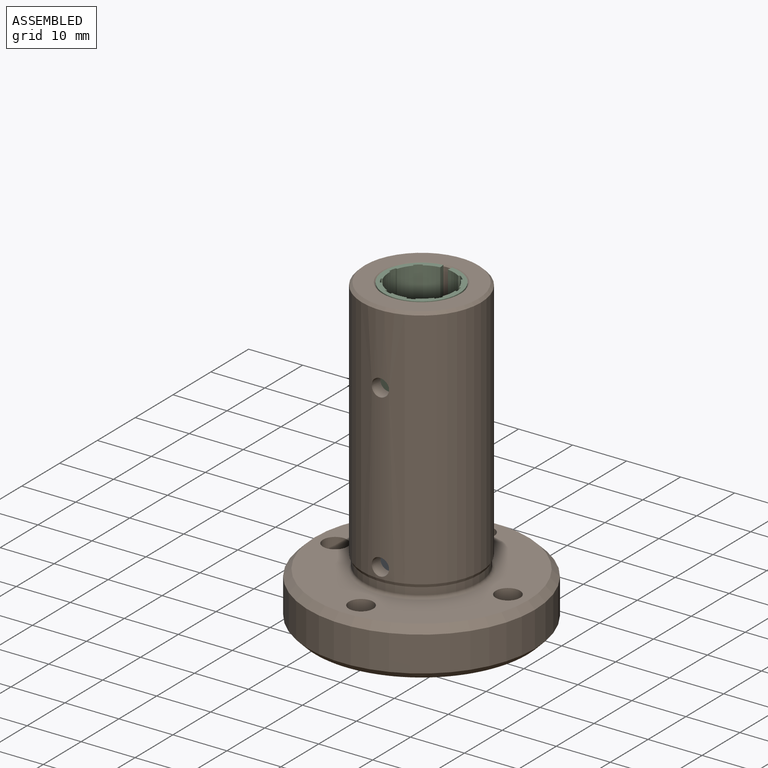
[diagram: assembled view]
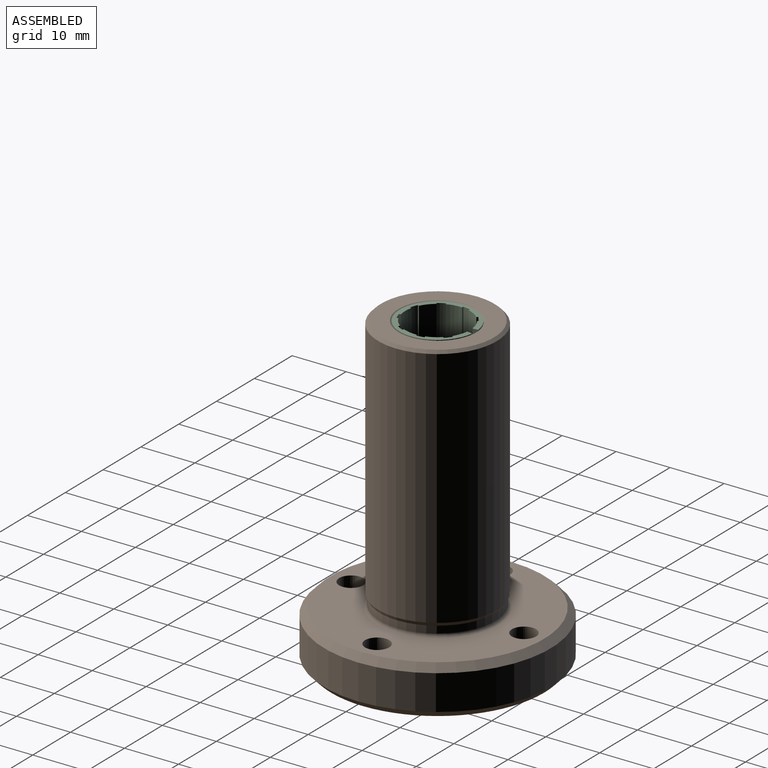
[diagram: assembled view, second angle]
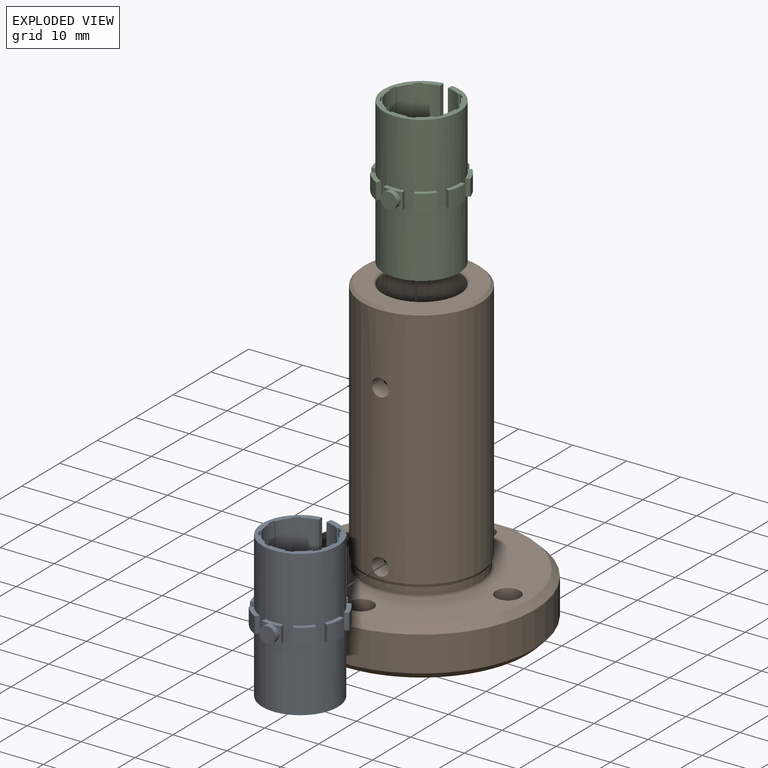
[diagram: exploded view]
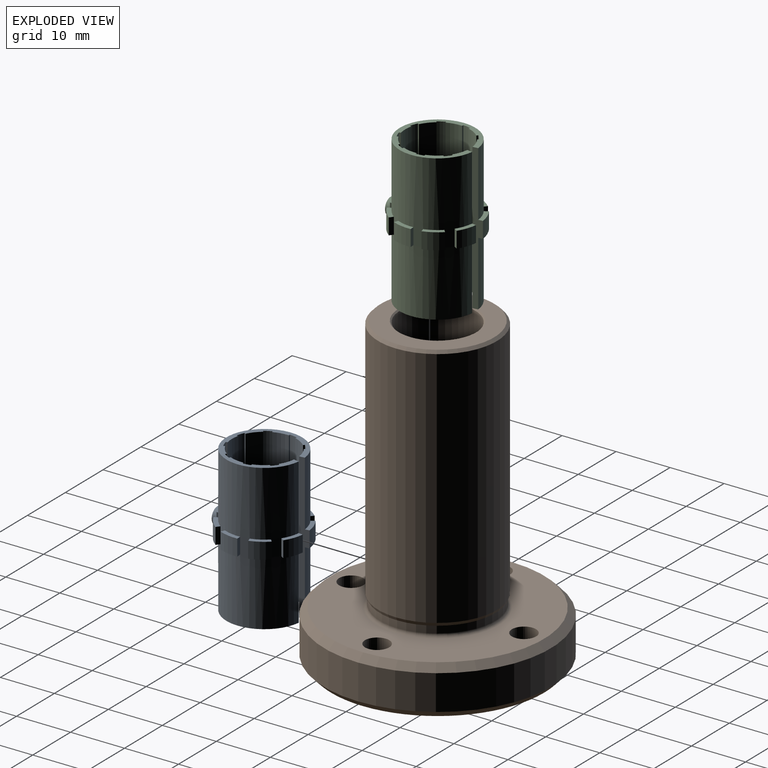
[diagram: exploded view, second angle]
ASSEMBLY  parts=3 mates=4
PART A: 84 faces, bbox 15.6x16.4x27 mm
  f0: cylinder r=7mm len=27mm, axis (0,0,1), area 1055.6mm2, adj f4,f8,f9,f10,f11,f12,f14,f15
  f1: cylinder r=6mm len=27mm, axis (0,0,1), area 75.4mm2, adj f4,f59,f66,f71
  f2: cylinder r=6mm len=27mm, axis (0,0,1), area 75.4mm2, adj f4,f66,f67,f79
  f3: cylinder r=1.5mm len=3mm, axis (0,1,0), area 9.2mm2, adj f5,f6,f7
  f4: plane 14x13.95mm, normal (0,0,-1), area 35.9mm2, adj f0,f1,f2,f29,f32,f52,f53,f54
  f5: plane 3x3mm, normal (0,-1,0), area 7.1mm2, adj f3
  f6: cylinder r=7.8mm len=3mm, axis (0,0,1), area 3.2mm2, adj f3,f8,f10,f11
  f7: cylinder r=7.8mm len=3mm, axis (0,0,1), area 3.2mm2, adj f3,f9,f10,f11
  f8: plane 3x0.78mm, normal (0.97,0.23,0), area 2.4mm2, adj f0,f6,f10,f11
  f9: plane 3x0.78mm, normal (-0.97,0.23,0), area 2.4mm2, adj f0,f7,f10,f11
  f10: plane 3.6x0.99mm, normal (0,0,-1), area 2.8mm2, adj f0,f6,f7,f8,f9
  f11: plane 3.6x0.99mm, normal (0,0,1), area 2.8mm2, adj f0,f6,f7,f8,f9
  f12: plane 3x0.72mm, normal (0.89,-0.45,0), area 2.4mm2, adj f0,f13,f15,f16
  f13: cylinder r=7.8mm len=3mm, axis (0,0,1), area 10.9mm2, adj f12,f14,f15,f16
  f14: plane 3x0.64mm, normal (-0.6,0.8,0), area 2.4mm2, adj f0,f13,f15,f16
  f15: plane 3.12x2.79mm, normal (0,0,-1), area 2.8mm2, adj f0,f12,f13,f14
  f16: plane 3.12x2.79mm, normal (0,0,1), area 2.8mm2, adj f0,f12,f13,f14
  f17: plane 3x0.73mm, normal (0.4,-0.92,0), area 2.4mm2, adj f0,f18,f20,f21
  f18: cylinder r=7.8mm len=3.54mm, axis (0,0,1), area 10.9mm2, adj f17,f19,f20,f21
  f19: plane 3x0.8mm, normal (0.06,1,0), area 2.4mm2, adj f0,f18,f20,f21
  f20: plane 3.54x1.37mm, normal (0,0,-1), area 2.8mm2, adj f0,f17,f18,f19
  f21: plane 3.54x1.37mm, normal (0,0,1), area 2.8mm2, adj f0,f17,f18,f19
  f22: plane 3x0.77mm, normal (-0.29,-0.96,0), area 2.4mm2, adj f0,f23,f25,f26
  f23: cylinder r=7.8mm len=3.12mm, axis (0,0,1), area 10.9mm2, adj f22,f24,f25,f26
  f24: plane 3x0.58mm, normal (0.69,0.73,0), area 2.4mm2, adj f0,f23,f25,f26
  f25: plane 3.35x2.38mm, normal (0,0,-1), area 2.8mm2, adj f0,f22,f23,f24
  f26: plane 3.35x2.38mm, normal (0,0,1), area 2.8mm2, adj f0,f22,f23,f24
  f27: plane 3x0.67mm, normal (-0.84,-0.55,0), area 2.4mm2, adj f0,f28,f30,f31
  f28: cylinder r=7.8mm len=3.38mm, axis (0,0,1), area 10.9mm2, adj f27,f29,f30,f31
  f29: plane 27x1.79mm, normal (0.99,0.12,0), area 29.4mm2, adj f0,f4,f28,f30,f31,f57,f66
  f30: plane 3.47x1.9mm, normal (0,0,-1), area 2.8mm2, adj f0,f27,f28,f29
  f31: plane 3.47x1.9mm, normal (0,0,1), area 2.8mm2, adj f0,f27,f28,f29
  f32: plane 27x1.79mm, normal (-0.99,0.12,0), area 29.4mm2, adj f0,f4,f33,f35,f36,f55,f66
  f33: cylinder r=7.8mm len=3.38mm, axis (0,0,1), area 10.9mm2, adj f32,f34,f35,f36
  f34: plane 3x0.67mm, normal (0.84,-0.55,0), area 2.4mm2, adj f0,f33,f35,f36
  f35: plane 3.47x1.9mm, normal (0,0,-1), area 2.8mm2, adj f0,f32,f33,f34
  f36: plane 3.47x1.9mm, normal (0,0,1), area 2.8mm2, adj f0,f32,f33,f34
  f37: plane 3x0.58mm, normal (-0.69,0.73,0), area 2.4mm2, adj f0,f38,f40,f41
  f38: cylinder r=7.8mm len=3.12mm, axis (0,0,1), area 10.9mm2, adj f37,f39,f40,f41
  f39: plane 3x0.77mm, normal (0.29,-0.96,0), area 2.4mm2, adj f0,f38,f40,f41
  f40: plane 3.35x2.38mm, normal (0,0,-1), area 2.8mm2, adj f0,f37,f38,f39
  f41: plane 3.35x2.38mm, normal (0,0,1), area 2.8mm2, adj f0,f37,f38,f39
  f42: plane 3x0.8mm, normal (-0.06,1,0), area 2.4mm2, adj f0,f43,f45,f46
  f43: cylinder r=7.8mm len=3.54mm, axis (0,0,1), area 10.9mm2, adj f42,f44,f45,f46
  f44: plane 3x0.73mm, normal (-0.4,-0.92,0), area 2.4mm2, adj f0,f43,f45,f46
  f45: plane 3.54x1.37mm, normal (0,0,-1), area 2.8mm2, adj f0,f42,f43,f44
  f46: plane 3.54x1.37mm, normal (0,0,1), area 2.8mm2, adj f0,f42,f43,f44
  f47: plane 3x0.64mm, normal (0.6,0.8,0), area 2.4mm2, adj f0,f48,f50,f51
  f48: cylinder r=7.8mm len=3mm, axis (0,0,1), area 10.9mm2, adj f47,f49,f50,f51
  f49: plane 3x0.72mm, normal (-0.89,-0.45,0), area 2.4mm2, adj f0,f48,f50,f51
  f50: plane 3.12x2.79mm, normal (0,0,-1), area 2.8mm2, adj f0,f47,f48,f49
  f51: plane 3.12x2.79mm, normal (0,0,1), area 2.8mm2, adj f0,f47,f48,f49
  f52: cylinder r=6mm len=27mm, axis (0,0,1), area 75.4mm2, adj f4,f64,f66,f81
  f53: cylinder r=6mm len=27mm, axis (0,0,1), area 75.4mm2, adj f4,f65,f66,f77
  f54: cylinder r=6mm len=27mm, axis (0,0,1), area 75.4mm2, adj f4,f62,f66,f83
  f55: cylinder r=6mm len=27mm, axis (0,0,1), area 75.4mm2, adj f4,f32,f63,f66
  f56: cylinder r=6mm len=27mm, axis (0,0,1), area 75.4mm2, adj f4,f61,f66,f69
  f57: cylinder r=6mm len=27mm, axis (0,0,1), area 75.4mm2, adj f4,f29,f66,f75
  f58: cylinder r=6mm len=27mm, axis (0,0,1), area 75.4mm2, adj f4,f60,f66,f73
  f59: plane 27x0.3mm, normal (0.06,1,0), area 8.1mm2, adj f1,f4,f66,f72
  f60: plane 27x0.22mm, normal (0.69,0.73,0), area 8.1mm2, adj f4,f58,f66,f74
  f61: plane 27x0.24mm, normal (-0.6,0.8,0), area 8.1mm2, adj f4,f56,f66,f70
  f62: plane 27x0.29mm, normal (-0.97,0.23,0), area 8.1mm2, adj f4,f54,f66,f68
  f63: plane 27x0.25mm, normal (0.84,-0.55,0), area 8.1mm2, adj f4,f55,f66,f76
  f64: plane 27x0.27mm, normal (-0.89,-0.45,0), area 8.1mm2, adj f4,f52,f66,f82
  f65: plane 27x0.29mm, normal (0.29,-0.96,0), area 8.1mm2, adj f4,f53,f66,f78
  f66: plane 14x13.95mm, normal (0,0,1), area 35.9mm2, adj f0,f1,f2,f29,f32,f52,f53,f54
  f67: plane 27x0.28mm, normal (-0.4,-0.92,0), area 8.1mm2, adj f2,f4,f66,f80
  f68: cylinder r=6.3mm len=27mm, axis (0,0,1), area 39.6mm2, adj f4,f62,f66,f69
  f69: plane 27x0.27mm, normal (0.89,-0.45,0), area 8.1mm2, adj f4,f56,f66,f68
  f70: cylinder r=6.3mm len=27mm, axis (0,0,1), area 39.6mm2, adj f4,f61,f66,f71
  f71: plane 27x0.28mm, normal (0.4,-0.92,0), area 8.1mm2, adj f1,f4,f66,f70
  f72: cylinder r=6.3mm len=27mm, axis (0,0,1), area 39.6mm2, adj f4,f59,f66,f73
  f73: plane 27x0.29mm, normal (-0.29,-0.96,0), area 8.1mm2, adj f4,f58,f66,f72
  f74: cylinder r=6.3mm len=27mm, axis (0,0,1), area 39.6mm2, adj f4,f60,f66,f75
  f75: plane 27x0.25mm, normal (-0.84,-0.55,0), area 8.1mm2, adj f4,f57,f66,f74
  f76: cylinder r=6.3mm len=27mm, axis (0,0,1), area 39.6mm2, adj f4,f63,f66,f77
  f77: plane 27x0.22mm, normal (-0.69,0.73,0), area 8.1mm2, adj f4,f53,f66,f76
  f78: cylinder r=6.3mm len=27mm, axis (0,0,1), area 39.6mm2, adj f4,f65,f66,f79
  f79: plane 27x0.3mm, normal (-0.06,1,0), area 8.1mm2, adj f2,f4,f66,f78
  f80: cylinder r=6.3mm len=27mm, axis (0,0,1), area 39.6mm2, adj f4,f66,f67,f81
  f81: plane 27x0.24mm, normal (0.6,0.8,0), area 8.1mm2, adj f4,f52,f66,f80
  f82: cylinder r=6.3mm len=27mm, axis (0,0,1), area 39.6mm2, adj f4,f64,f66,f83
  f83: plane 27x0.29mm, normal (0.97,0.23,0), area 8.1mm2, adj f4,f54,f66,f82
PART B: 36 faces, bbox 42x42x57 mm
  f0: cylinder r=21mm len=42mm, axis (0,0,1), area 857.7mm2, adj f1,f2
  f1: cone r=10.5mm half-angle=45deg, axis (0,0,-1), area 226.3mm2, adj f0,f35
  f2: cone r=10.5mm half-angle=45deg, axis (0,0,1), area 226.3mm2, adj f0,f31
  f3: cylinder r=2.25mm len=4.9mm, axis (0,0,1), area 69.3mm2, adj f34,f35
  f4: cylinder r=2.25mm len=4.9mm, axis (0,0,1), area 69.3mm2, adj f33,f35
  f5: cylinder r=2.25mm len=4.9mm, axis (0,0,1), area 69.3mm2, adj f32,f35
  f6: cylinder r=2.25mm len=4.9mm, axis (0,0,1), area 69.3mm2, adj f30,f35
  f7: cylinder r=3.75mm len=7.5mm, axis (0,0,1), area 96.6mm2, adj f31,f34
  f8: cylinder r=3.75mm len=7.5mm, axis (0,0,1), area 96.6mm2, adj f31,f33
  f9: cylinder r=3.75mm len=7.5mm, axis (0,0,1), area 96.6mm2, adj f31,f32
  f10: cylinder r=3.75mm len=7.5mm, axis (0,0,1), area 96.6mm2, adj f30,f31
  f11: cylinder r=11mm len=45mm, axis (0,0,1), area 3094mm2, adj f13,f15,f21,f24
  f12: torus R=11.3mm, axis (0,0,-1), area 64.7mm2, adj f14,f35
  f13: cone r=11mm half-angle=26.6deg, axis (0,0,1), area 45.7mm2, adj f11,f14
  f14: cylinder r=10.7mm len=21.4mm, axis (0,0,-1), area 87.4mm2, adj f12,f13
  f15: cone r=5.5mm half-angle=45deg, axis (0,0,-1), area 47.8mm2, adj f11,f29
  f16: cone r=3.62mm half-angle=45deg, axis (0,0,1), area 15.8mm2, adj f18,f29
  f17: cone r=3.62mm half-angle=45deg, axis (0,0,-1), area 15.8mm2, adj f20,f31
  f18: cylinder r=7mm len=14mm, axis (0,0,1), area 516.8mm2, adj f16,f24,f27
  f19: cylinder r=8mm len=16mm, axis (0,0,1), area 144.3mm2, adj f21,f26,f28
  f20: cylinder r=7mm len=14mm, axis (0,0,1), area 516.8mm2, adj f17,f21,f26
  f21: cylinder r=1.6mm len=3.91mm, axis (0,-1,0), area 32mm2, adj f11,f19,f20,f23,f26,f28
  f22: cylinder r=8mm len=16mm, axis (0,0,1), area 144.3mm2, adj f24,f25,f27
  f23: cylinder r=7mm len=27mm, axis (0,0,1), area 1187.5mm2, adj f21,f24,f25,f28
  f24: cylinder r=1.6mm len=3.91mm, axis (0,-1,0), area 32mm2, adj f11,f18,f22,f23,f25,f27
  f25: plane 16x15.98mm, normal (0,0,1), area 46mm2, adj f22,f23,f24
  f26: plane 16x15.98mm, normal (0,0,1), area 46mm2, adj f19,f20,f21
  f27: plane 16x15.98mm, normal (0,0,-1), area 46mm2, adj f18,f22,f24
  f28: plane 16x15.98mm, normal (0,0,-1), area 46mm2, adj f19,f21,f23
  f29: plane 21x21mm, normal (0,0,1), area 181.2mm2, adj f15,f16
  f30: plane 7.5x7.5mm, normal (0,0,-1), area 28.3mm2, adj f6,f10
  f31: plane 39.5x39.5mm, normal (0,0,-1), area 883.6mm2, adj f2,f7,f8,f9,f10,f17
  f32: plane 7.5x7.5mm, normal (0,0,-1), area 28.3mm2, adj f5,f9
  f33: plane 7.5x7.5mm, normal (0,0,-1), area 28.3mm2, adj f4,f8
  f34: plane 7.5x7.5mm, normal (0,0,-1), area 28.3mm2, adj f3,f7
  f35: plane 39.5x39.5mm, normal (0,0,1), area 760.7mm2, adj f1,f3,f4,f5,f6,f12
PART C: 84 faces, bbox 15.6x16.4x27 mm
  f0: cylinder r=7mm len=27mm, axis (0,0,1), area 1055.6mm2, adj f4,f8,f9,f10,f11,f12,f14,f15
  f1: cylinder r=6mm len=27mm, axis (0,0,1), area 75.4mm2, adj f4,f59,f66,f71
  f2: cylinder r=6mm len=27mm, axis (0,0,1), area 75.4mm2, adj f4,f66,f67,f79
  f3: cylinder r=1.5mm len=3mm, axis (0,1,0), area 9.2mm2, adj f5,f6,f7
  f4: plane 14x13.95mm, normal (0,0,-1), area 35.9mm2, adj f0,f1,f2,f29,f32,f52,f53,f54
  f5: plane 3x3mm, normal (0,-1,0), area 7.1mm2, adj f3
  f6: cylinder r=7.8mm len=3mm, axis (0,0,1), area 3.2mm2, adj f3,f8,f10,f11
  f7: cylinder r=7.8mm len=3mm, axis (0,0,1), area 3.2mm2, adj f3,f9,f10,f11
  f8: plane 3x0.78mm, normal (0.97,0.23,0), area 2.4mm2, adj f0,f6,f10,f11
  f9: plane 3x0.78mm, normal (-0.97,0.23,0), area 2.4mm2, adj f0,f7,f10,f11
  f10: plane 3.6x0.99mm, normal (0,0,-1), area 2.8mm2, adj f0,f6,f7,f8,f9
  f11: plane 3.6x0.99mm, normal (0,0,1), area 2.8mm2, adj f0,f6,f7,f8,f9
  f12: plane 3x0.72mm, normal (0.89,-0.45,0), area 2.4mm2, adj f0,f13,f15,f16
  f13: cylinder r=7.8mm len=3mm, axis (0,0,1), area 10.9mm2, adj f12,f14,f15,f16
  f14: plane 3x0.64mm, normal (-0.6,0.8,0), area 2.4mm2, adj f0,f13,f15,f16
  f15: plane 3.12x2.79mm, normal (0,0,-1), area 2.8mm2, adj f0,f12,f13,f14
  f16: plane 3.12x2.79mm, normal (0,0,1), area 2.8mm2, adj f0,f12,f13,f14
  f17: plane 3x0.73mm, normal (0.4,-0.92,0), area 2.4mm2, adj f0,f18,f20,f21
  f18: cylinder r=7.8mm len=3.54mm, axis (0,0,1), area 10.9mm2, adj f17,f19,f20,f21
  f19: plane 3x0.8mm, normal (0.06,1,0), area 2.4mm2, adj f0,f18,f20,f21
  f20: plane 3.54x1.37mm, normal (0,0,-1), area 2.8mm2, adj f0,f17,f18,f19
  f21: plane 3.54x1.37mm, normal (0,0,1), area 2.8mm2, adj f0,f17,f18,f19
  f22: plane 3x0.77mm, normal (-0.29,-0.96,0), area 2.4mm2, adj f0,f23,f25,f26
  f23: cylinder r=7.8mm len=3.12mm, axis (0,0,1), area 10.9mm2, adj f22,f24,f25,f26
  f24: plane 3x0.58mm, normal (0.69,0.73,0), area 2.4mm2, adj f0,f23,f25,f26
  f25: plane 3.35x2.38mm, normal (0,0,-1), area 2.8mm2, adj f0,f22,f23,f24
  f26: plane 3.35x2.38mm, normal (0,0,1), area 2.8mm2, adj f0,f22,f23,f24
  f27: plane 3x0.67mm, normal (-0.84,-0.55,0), area 2.4mm2, adj f0,f28,f30,f31
  f28: cylinder r=7.8mm len=3.38mm, axis (0,0,1), area 10.9mm2, adj f27,f29,f30,f31
  f29: plane 27x1.79mm, normal (0.99,0.12,0), area 29.4mm2, adj f0,f4,f28,f30,f31,f57,f66
  f30: plane 3.47x1.9mm, normal (0,0,-1), area 2.8mm2, adj f0,f27,f28,f29
  f31: plane 3.47x1.9mm, normal (0,0,1), area 2.8mm2, adj f0,f27,f28,f29
  f32: plane 27x1.79mm, normal (-0.99,0.12,0), area 29.4mm2, adj f0,f4,f33,f35,f36,f55,f66
  f33: cylinder r=7.8mm len=3.38mm, axis (0,0,1), area 10.9mm2, adj f32,f34,f35,f36
  f34: plane 3x0.67mm, normal (0.84,-0.55,0), area 2.4mm2, adj f0,f33,f35,f36
  f35: plane 3.47x1.9mm, normal (0,0,-1), area 2.8mm2, adj f0,f32,f33,f34
  f36: plane 3.47x1.9mm, normal (0,0,1), area 2.8mm2, adj f0,f32,f33,f34
  f37: plane 3x0.58mm, normal (-0.69,0.73,0), area 2.4mm2, adj f0,f38,f40,f41
  f38: cylinder r=7.8mm len=3.12mm, axis (0,0,1), area 10.9mm2, adj f37,f39,f40,f41
  f39: plane 3x0.77mm, normal (0.29,-0.96,0), area 2.4mm2, adj f0,f38,f40,f41
  f40: plane 3.35x2.38mm, normal (0,0,-1), area 2.8mm2, adj f0,f37,f38,f39
  f41: plane 3.35x2.38mm, normal (0,0,1), area 2.8mm2, adj f0,f37,f38,f39
  f42: plane 3x0.8mm, normal (-0.06,1,0), area 2.4mm2, adj f0,f43,f45,f46
  f43: cylinder r=7.8mm len=3.54mm, axis (0,0,1), area 10.9mm2, adj f42,f44,f45,f46
  f44: plane 3x0.73mm, normal (-0.4,-0.92,0), area 2.4mm2, adj f0,f43,f45,f46
  f45: plane 3.54x1.37mm, normal (0,0,-1), area 2.8mm2, adj f0,f42,f43,f44
  f46: plane 3.54x1.37mm, normal (0,0,1), area 2.8mm2, adj f0,f42,f43,f44
  f47: plane 3x0.64mm, normal (0.6,0.8,0), area 2.4mm2, adj f0,f48,f50,f51
  f48: cylinder r=7.8mm len=3mm, axis (0,0,1), area 10.9mm2, adj f47,f49,f50,f51
  f49: plane 3x0.72mm, normal (-0.89,-0.45,0), area 2.4mm2, adj f0,f48,f50,f51
  f50: plane 3.12x2.79mm, normal (0,0,-1), area 2.8mm2, adj f0,f47,f48,f49
  f51: plane 3.12x2.79mm, normal (0,0,1), area 2.8mm2, adj f0,f47,f48,f49
  f52: cylinder r=6mm len=27mm, axis (0,0,1), area 75.4mm2, adj f4,f64,f66,f81
  f53: cylinder r=6mm len=27mm, axis (0,0,1), area 75.4mm2, adj f4,f65,f66,f77
  f54: cylinder r=6mm len=27mm, axis (0,0,1), area 75.4mm2, adj f4,f62,f66,f83
  f55: cylinder r=6mm len=27mm, axis (0,0,1), area 75.4mm2, adj f4,f32,f63,f66
  f56: cylinder r=6mm len=27mm, axis (0,0,1), area 75.4mm2, adj f4,f61,f66,f69
  f57: cylinder r=6mm len=27mm, axis (0,0,1), area 75.4mm2, adj f4,f29,f66,f75
  f58: cylinder r=6mm len=27mm, axis (0,0,1), area 75.4mm2, adj f4,f60,f66,f73
  f59: plane 27x0.3mm, normal (0.06,1,0), area 8.1mm2, adj f1,f4,f66,f72
  f60: plane 27x0.22mm, normal (0.69,0.73,0), area 8.1mm2, adj f4,f58,f66,f74
  f61: plane 27x0.24mm, normal (-0.6,0.8,0), area 8.1mm2, adj f4,f56,f66,f70
  f62: plane 27x0.29mm, normal (-0.97,0.23,0), area 8.1mm2, adj f4,f54,f66,f68
  f63: plane 27x0.25mm, normal (0.84,-0.55,0), area 8.1mm2, adj f4,f55,f66,f76
  f64: plane 27x0.27mm, normal (-0.89,-0.45,0), area 8.1mm2, adj f4,f52,f66,f82
  f65: plane 27x0.29mm, normal (0.29,-0.96,0), area 8.1mm2, adj f4,f53,f66,f78
  f66: plane 14x13.95mm, normal (0,0,1), area 35.9mm2, adj f0,f1,f2,f29,f32,f52,f53,f54
  f67: plane 27x0.28mm, normal (-0.4,-0.92,0), area 8.1mm2, adj f2,f4,f66,f80
  f68: cylinder r=6.3mm len=27mm, axis (0,0,1), area 39.6mm2, adj f4,f62,f66,f69
  f69: plane 27x0.27mm, normal (0.89,-0.45,0), area 8.1mm2, adj f4,f56,f66,f68
  f70: cylinder r=6.3mm len=27mm, axis (0,0,1), area 39.6mm2, adj f4,f61,f66,f71
  f71: plane 27x0.28mm, normal (0.4,-0.92,0), area 8.1mm2, adj f1,f4,f66,f70
  f72: cylinder r=6.3mm len=27mm, axis (0,0,1), area 39.6mm2, adj f4,f59,f66,f73
  f73: plane 27x0.29mm, normal (-0.29,-0.96,0), area 8.1mm2, adj f4,f58,f66,f72
  f74: cylinder r=6.3mm len=27mm, axis (0,0,1), area 39.6mm2, adj f4,f60,f66,f75
  f75: plane 27x0.25mm, normal (-0.84,-0.55,0), area 8.1mm2, adj f4,f57,f66,f74
  f76: cylinder r=6.3mm len=27mm, axis (0,0,1), area 39.6mm2, adj f4,f63,f66,f77
  f77: plane 27x0.22mm, normal (-0.69,0.73,0), area 8.1mm2, adj f4,f53,f66,f76
  f78: cylinder r=6.3mm len=27mm, axis (0,0,1), area 39.6mm2, adj f4,f65,f66,f79
  f79: plane 27x0.3mm, normal (-0.06,1,0), area 8.1mm2, adj f2,f4,f66,f78
  f80: cylinder r=6.3mm len=27mm, axis (0,0,1), area 39.6mm2, adj f4,f66,f67,f81
  f81: plane 27x0.24mm, normal (0.6,0.8,0), area 8.1mm2, adj f4,f52,f66,f80
  f82: cylinder r=6.3mm len=27mm, axis (0,0,1), area 39.6mm2, adj f4,f64,f66,f83
  f83: plane 27x0.29mm, normal (0.97,0.23,0), area 8.1mm2, adj f4,f54,f66,f82
PLACE A t=(-90.7,42.49,3.27)mm
PLACE B t=(-90.7,42.49,3.27)mm
PLACE C t=(-90.7,42.49,3.27)mm
MATE cylindrical C.f0 <-> B.f0  axis (0,0,1) through (-90.7,42.49,18.27)mm
MATE cylindrical C.f3 <-> B.f24  axis (0,1,0) through (-90.7,34.32,18.27)mm
MATE cylindrical A.f3 <-> B.f21  axis (0,1,0) through (-90.7,34.32,-11.73)mm
MATE cylindrical A.f0 <-> B.f0  axis (0,0,1) through (-90.7,42.49,-11.73)mm
